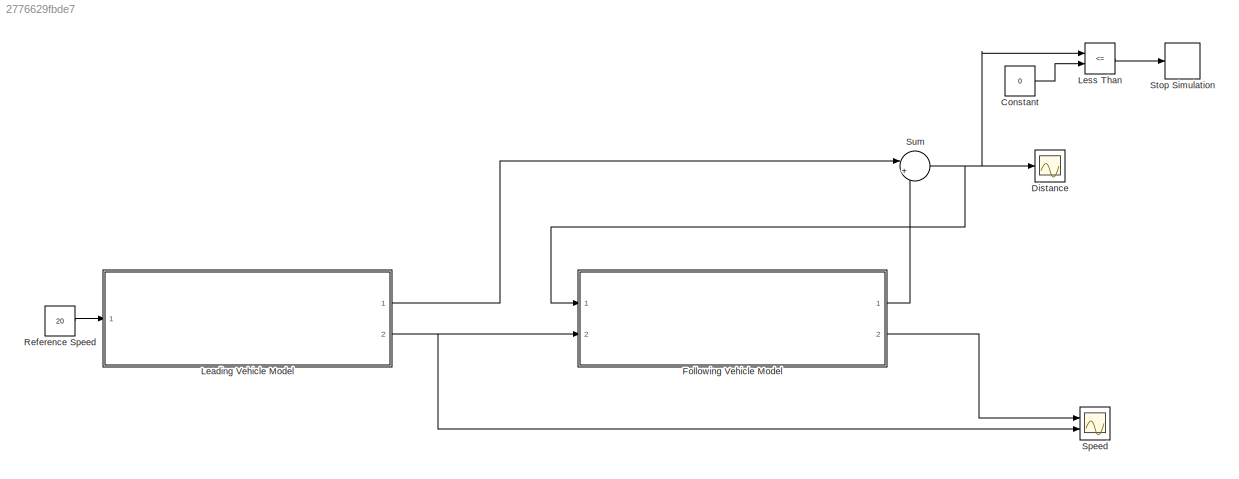
MODEL slx_2776629fbde7
KIND model
CONFIG AbsTol = auto
CONFIG EnableMultiTasking = off
CONFIG FixedStep = auto
CONFIG MaxStep = auto
CONFIG MinStep = auto
CONFIG RelTol = 1e-3
CONFIG SampleTimeConstraint = Unconstrained
CONFIG SolverName = VariableStepAuto
CONFIG StartTime = 0.0
CONFIG StopTime = 100
BLOCK [Constant] Constant
  Value = 0
BLOCK [Scope] Distance
  Floating = off
  NumInputPorts = 1
  Ports = [1]
  ScopeSpecificationString = Simulink.scopes.TimeScopeBlockCfg('CurrentConfiguration', extmgr.ConfigurationSet(extmgr.Configuration('Core','General UI',true),extmgr.Configuration('Core','Source UI',true),extmgr.Configuration('Sources','WiredSimulink',true),extmgr.Configuration('Visuals','Time Domain',true,'SerializedDisplays',{struct('MinYLimReal','9.46058','MaxYLimReal','110.05994','YLabelReal','','MinYLimMag','9.46058','Max...<+1354ch>
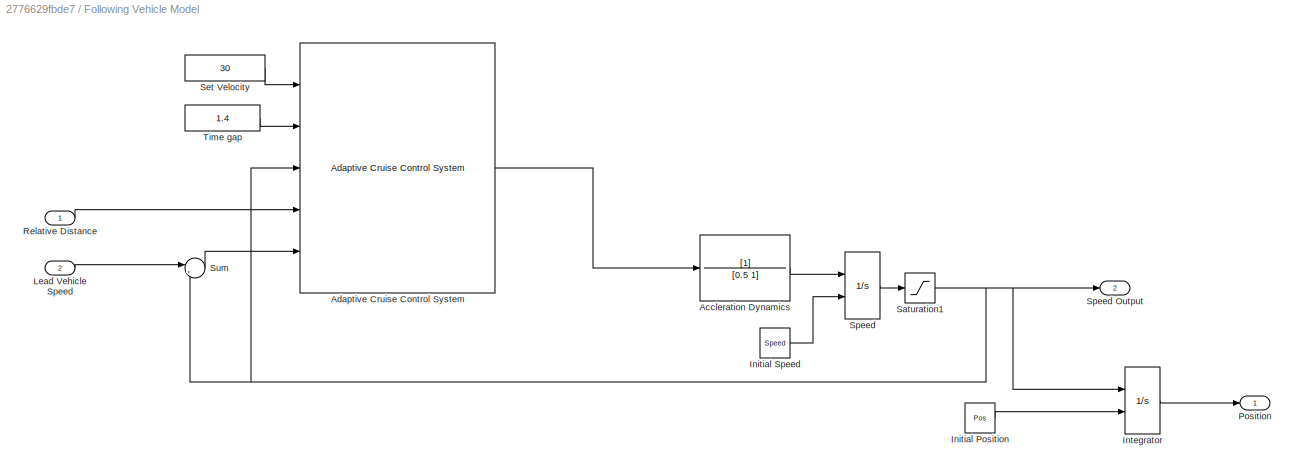
BLOCK [SubSystem] Following Vehicle Model
  Ports = [2, 2]
  RequestExecContextInheritance = off
BLOCK [TransferFcn] Following Vehicle Model/Accleration Dynamics
  Denominator = [0.5 1]
BLOCK [Reference] Following Vehicle Model/Adaptive Cruise Control System  REF=mpcadaslib/Adaptive Cruise Control System
  Ports = [5, 1]
  SourceBlock = mpcadaslib/Adaptive Cruise Control System
  SourceProductBaseCode = MP
  SourceType = Adaptive cruise control (ACC) system
BLOCK [Constant] Following Vehicle Model/Initial Position
  Value = Pos
BLOCK [Constant] Following Vehicle Model/Initial Speed
  Value = Speed
BLOCK [Integrator] Following Vehicle Model/Integrator
  InitialConditionSource = external
  Ports = [2, 1]
BLOCK [Inport] Following Vehicle Model/Lead Vehicle Speed
  Port = 2
BLOCK [Outport] Following Vehicle Model/Position
BLOCK [Inport] Following Vehicle Model/Relative Distance
BLOCK [Saturate] Following Vehicle Model/Saturation1
  LowerLimit = 0
  UpperLimit = inf
BLOCK [Constant] Following Vehicle Model/Set Velocity
  Value = 30
BLOCK [Integrator] Following Vehicle Model/Speed
  InitialConditionSource = external
  Ports = [2, 1]
BLOCK [Outport] Following Vehicle Model/Speed Output
  Port = 2
BLOCK [Sum] Following Vehicle Model/Sum
  Inputs = |+-
  Ports = [2, 1]
BLOCK [Constant] Following Vehicle Model/Time gap
  Value = 1.4
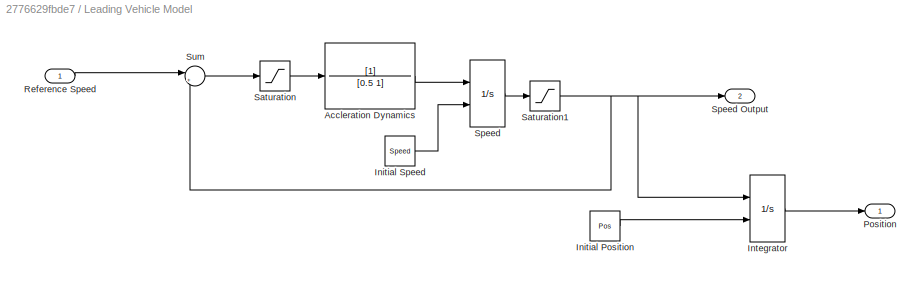
BLOCK [SubSystem] Leading Vehicle Model
  Ports = [1, 2]
  RequestExecContextInheritance = off
BLOCK [TransferFcn] Leading Vehicle Model/Accleration Dynamics
  Denominator = [0.5 1]
BLOCK [Constant] Leading Vehicle Model/Initial Position
  Value = Pos
BLOCK [Constant] Leading Vehicle Model/Initial Speed
  Value = Speed
BLOCK [Integrator] Leading Vehicle Model/Integrator
  InitialConditionSource = external
  Ports = [2, 1]
BLOCK [Outport] Leading Vehicle Model/Position
BLOCK [Inport] Leading Vehicle Model/Reference Speed
BLOCK [Saturate] Leading Vehicle Model/Saturation
  LowerLimit = -3
  UpperLimit = 2
BLOCK [Saturate] Leading Vehicle Model/Saturation1
  LowerLimit = 0
  UpperLimit = inf
BLOCK [Integrator] Leading Vehicle Model/Speed
  InitialConditionSource = external
  Ports = [2, 1]
BLOCK [Outport] Leading Vehicle Model/Speed Output
  Port = 2
BLOCK [Sum] Leading Vehicle Model/Sum
  Inputs = |+-
  Ports = [2, 1]
BLOCK [RelationalOperator] Less Than
  InputSameDT = off
  Operator = <=
  OutDataTypeStr = boolean
  Ports = [2, 1]
  RndMeth = Simplest
BLOCK [Constant] Reference Speed
  Value = 20
BLOCK [Scope] Speed
  Floating = off
  NumInputPorts = 2
  Ports = [2]
  ScopeSpecificationString = Simulink.scopes.TimeScopeBlockCfg('CurrentConfiguration', extmgr.ConfigurationSet(extmgr.Configuration('Core','General UI',true),extmgr.Configuration('Core','Source UI',true),extmgr.Configuration('Sources','WiredSimulink',true,'DataLoggingVariableName','ScopeData1'),extmgr.Configuration('Visuals','Time Domain',true,'SerializedDisplays',{struct('MinYLimReal','11.62774','MaxYLimReal','33.66185','YLa...<+1439ch>
BLOCK [Stop] Stop Simulation
BLOCK [Sum] Sum
  Inputs = |+-
  Ports = [2, 1]
LINE Constant:1 -> Less Than:2
LINE Following Vehicle Model/Accleration Dynamics:1 -> Following Vehicle Model/Speed:1
LINE Following Vehicle Model/Adaptive Cruise Control System:1 -> Following Vehicle Model/Accleration Dynamics:1
LINE Following Vehicle Model/Initial Position:1 -> Following Vehicle Model/Integrator:2
LINE Following Vehicle Model/Initial Speed:1 -> Following Vehicle Model/Speed:2
LINE Following Vehicle Model/Integrator:1 -> Following Vehicle Model/Position:1
LINE Following Vehicle Model/Lead Vehicle Speed:1 -> Following Vehicle Model/Sum:1
LINE Following Vehicle Model/Relative Distance:1 -> Following Vehicle Model/Adaptive Cruise Control System:4
NET Following Vehicle Model/Saturation1:1 -> Following Vehicle Model/Adaptive Cruise Control System:3, Following Vehicle Model/Integrator:1, Following Vehicle Model/Speed Output:1, Following Vehicle Model/Sum:2
LINE Following Vehicle Model/Set Velocity:1 -> Following Vehicle Model/Adaptive Cruise Control System:1
LINE Following Vehicle Model/Speed:1 -> Following Vehicle Model/Saturation1:1
LINE Following Vehicle Model/Sum:1 -> Following Vehicle Model/Adaptive Cruise Control System:5
LINE Following Vehicle Model/Time gap:1 -> Following Vehicle Model/Adaptive Cruise Control System:2
LINE Following Vehicle Model:1 -> Sum:2
LINE Following Vehicle Model:2 -> Speed:1
LINE Leading Vehicle Model/Accleration Dynamics:1 -> Leading Vehicle Model/Speed:1
LINE Leading Vehicle Model/Initial Position:1 -> Leading Vehicle Model/Integrator:2
LINE Leading Vehicle Model/Initial Speed:1 -> Leading Vehicle Model/Speed:2
LINE Leading Vehicle Model/Integrator:1 -> Leading Vehicle Model/Position:1
LINE Leading Vehicle Model/Reference Speed:1 -> Leading Vehicle Model/Sum:1
NET Leading Vehicle Model/Saturation1:1 -> Leading Vehicle Model/Integrator:1, Leading Vehicle Model/Speed Output:1, Leading Vehicle Model/Sum:2
LINE Leading Vehicle Model/Saturation:1 -> Leading Vehicle Model/Accleration Dynamics:1
LINE Leading Vehicle Model/Speed:1 -> Leading Vehicle Model/Saturation1:1
LINE Leading Vehicle Model/Sum:1 -> Leading Vehicle Model/Saturation:1
LINE Leading Vehicle Model:1 -> Sum:1
NET Leading Vehicle Model:2 -> Following Vehicle Model:2, Speed:2
LINE Less Than:1 -> Stop Simulation:1
LINE Reference Speed:1 -> Leading Vehicle Model:1
NET Sum:1 -> Distance:1, Following Vehicle Model:1, Less Than:1
note: NET lines group one-source signal fan-out (src -> all destinations, sorted); 1:1 wires keep LINE
